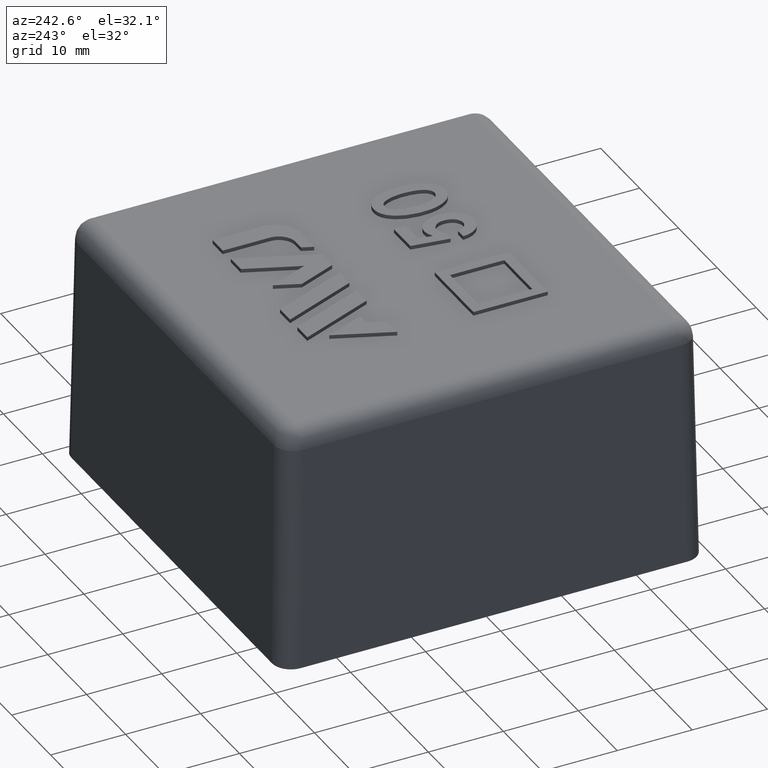
[diagram: clean part render]
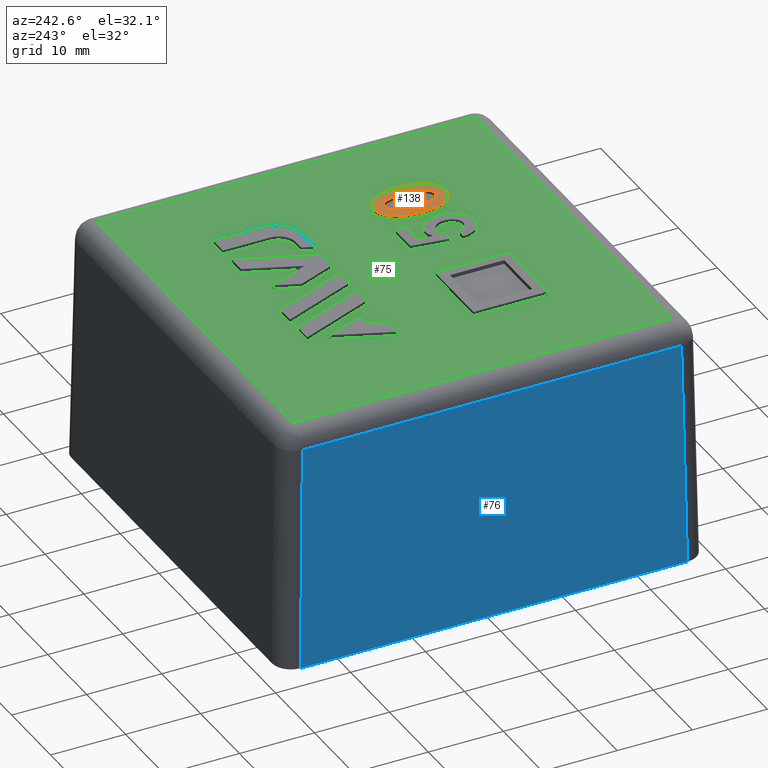
[diagram: same view with three faces highlighted in distinct colors, each labeled with its STEP entity id]
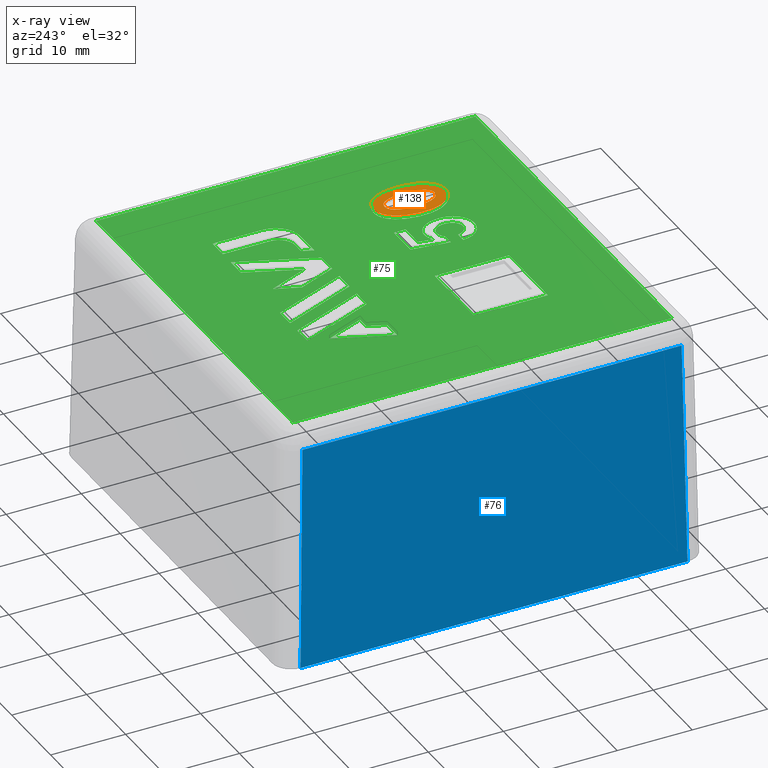
[diagram: x-ray of the same camera — body ghosted, the three highlighted faces saturated]
A machine part, auxiliary view with three faces highlighted in distinct colors.
The next image is the same camera in x-ray (body ghosted, the three faces saturated) — at least one of them is partly hidden behind the body in this view.
Their STEP definitions:

[orange] entity #138 — the highlighted planar face has unit normal (0, 0, 1).
#138 = ADVANCED_FACE( '', ( #295, #296 ), #297, .T. );
#295 = FACE_OUTER_BOUND( '', #475, .T. );
#296 = FACE_BOUND( '', #476, .T. );
#297 = PLANE( '', #477 );
#475 = EDGE_LOOP( '', ( #1062 ) );
#476 = EDGE_LOOP( '', ( #1063 ) );
#477 = AXIS2_PLACEMENT_3D( '', #1064, #1065, #1066 );
#1062 = ORIENTED_EDGE( '', *, *, #1250, .F. );
#1063 = ORIENTED_EDGE( '', *, *, #1251, .F. );
#1064 = CARTESIAN_POINT( '', ( 13.8482948863636, -5.87955454545456, 33.0000000000000 ) );
#1065 = DIRECTION( '', ( 0.000000000000000, 0.000000000000000, 1.00000000000000 ) );
#1066 = DIRECTION( '', ( 0.000000000000000, -1.00000000000000, 0.000000000000000 ) );
#1250 = EDGE_CURVE( '', #1499, #1499, #1500, .T. );
#1251 = EDGE_CURVE( '', #1501, #1501, #1502, .T. );
#1499 = VERTEX_POINT( '', #1920 );
#1500 = B_SPLINE_CURVE_WITH_KNOTS( '', 2, ( #1921, #1922, #1923, #1924, #1925, #1926, #1927, #1928, #1929, #1930, #1931, #1932, #1933, #1934, #1935, #1936, #1937 ), .UNSPECIFIED., .T., .F., ( 3, 2, 2, 2, 2, 2, 2, 2, 3 ), ( 0.000000000000000, 1.00000000000000, 2.00000000000000, 3.00000000000000, 4.00000000000000, 5.00000000000000, 6.00000000000000, 7.00000000000000, 8.00000000000000 ), .UNSPECIFIED. );
#1501 = VERTEX_POINT( '', #1938 );
#1502 = B_SPLINE_CURVE_WITH_KNOTS( '', 2, ( #1939, #1940, #1941, #1942, #1943, #1944, #1945, #1946, #1947, #1948, #1949, #1950, #1951, #1952, #1953, #1954, #1955 ), .UNSPECIFIED., .T., .F., ( 3, 2, 2, 2, 2, 2, 2, 2, 3 ), ( 0.000000000000000, 1.00000000000000, 2.00000000000000, 3.00000000000000, 4.00000000000000, 5.00000000000000, 6.00000000000000, 7.00000000000000, 8.00000000000000 ), .UNSPECIFIED. );
#1920 = CARTESIAN_POINT( '', ( 9.54146598600632, -13.1306803890433, 33.0000000000000 ) );
#1921 = CARTESIAN_POINT( '', ( 9.54146598600632, -13.1306803890433, 33.0000000000000 ) );
#1922 = CARTESIAN_POINT( '', ( 8.63574943181814, -11.9462818181818, 33.0000000000000 ) );
#1923 = CARTESIAN_POINT( '', ( 8.57256389032842, -9.94540633767386, 33.0000000000000 ) );
#1924 = CARTESIAN_POINT( '', ( 8.49938579545451, -7.62810000000002, 33.0000000000000 ) );
#1925 = CARTESIAN_POINT( '', ( 9.44167384448413, -6.12043912155262, 33.0000000000000 ) );
#1926 = CARTESIAN_POINT( '', ( 10.3175676136363, -4.71900909090911, 33.0000000000000 ) );
#1927 = CARTESIAN_POINT( '', ( 11.7266585227272, -4.71900909090911, 33.0000000000000 ) );
#1928 = CARTESIAN_POINT( '', ( 13.0448403409091, -4.71900909090911, 33.0000000000000 ) );
#1929 = CARTESIAN_POINT( '', ( 13.8482948863636, -5.87955454545456, 33.0000000000000 ) );
#1930 = CARTESIAN_POINT( '', ( 14.6812039772727, -7.08264545454547, 33.0000000000000 ) );
#1931 = CARTESIAN_POINT( '', ( 14.7653459165192, -9.08101651164897, 33.0000000000000 ) );
#1932 = CARTESIAN_POINT( '', ( 14.8630221590909, -11.4008272727273, 33.0000000000000 ) );
#1933 = CARTESIAN_POINT( '', ( 13.9601905644560, -12.8592475409836, 33.0000000000000 ) );
#1934 = CARTESIAN_POINT( '', ( 13.0902948863636, -14.2644636363637, 33.0000000000000 ) );
#1935 = CARTESIAN_POINT( '', ( 11.7266585227272, -14.2644636363637, 33.0000000000000 ) );
#1936 = CARTESIAN_POINT( '', ( 10.4084767045454, -14.2644636363637, 33.0000000000000 ) );
#1937 = CARTESIAN_POINT( '', ( 9.54146598600632, -13.1306803890433, 33.0000000000000 ) );
#1938 = CARTESIAN_POINT( '', ( 10.3630221590909, -11.5826454545455, 33.0000000000000 ) );
#1939 = CARTESIAN_POINT( '', ( 10.3630221590909, -11.5826454545455, 33.0000000000000 ) );
#1940 = CARTESIAN_POINT( '', ( 10.7721130681818, -12.6735545454546, 33.0000000000000 ) );
#1941 = CARTESIAN_POINT( '', ( 11.5454891766094, -12.8061333068993, 33.0000000000000 ) );
#1942 = CARTESIAN_POINT( '', ( 12.3630221590909, -12.9462818181818, 33.0000000000000 ) );
#1943 = CARTESIAN_POINT( '', ( 12.8472214239178, -12.0288516321940, 33.0000000000000 ) );
#1944 = CARTESIAN_POINT( '', ( 13.2266585227272, -11.3099181818182, 33.0000000000000 ) );
#1945 = CARTESIAN_POINT( '', ( 13.3101479527513, -10.0367043739509, 33.0000000000000 ) );
#1946 = CARTESIAN_POINT( '', ( 13.4084767045454, -8.53719090909092, 33.0000000000000 ) );
#1947 = CARTESIAN_POINT( '', ( 13.0383212235975, -7.44849831806775, 33.0000000000000 ) );
#1948 = CARTESIAN_POINT( '', ( 12.6357494318181, -6.26446363636365, 33.0000000000000 ) );
#1949 = CARTESIAN_POINT( '', ( 11.9102948863636, -6.16082727272729, 33.0000000000000 ) );
#1950 = CARTESIAN_POINT( '', ( 11.0448403409091, -6.03719090909093, 33.0000000000000 ) );
#1951 = CARTESIAN_POINT( '', ( 10.6000850961538, -6.81551258741260, 33.0000000000000 ) );
#1952 = CARTESIAN_POINT( '', ( 10.1357494318181, -7.62810000000002, 33.0000000000000 ) );
#1953 = CARTESIAN_POINT( '', ( 10.0520263794627, -8.94673807459794, 33.0000000000000 ) );
#1954 = CARTESIAN_POINT( '', ( 9.95393124999997, -10.4917363636364, 33.0000000000000 ) );
#1955 = CARTESIAN_POINT( '', ( 10.3630221590909, -11.5826454545455, 33.0000000000000 ) );

[blue] entity #76 — the highlighted planar face has unit normal (-0.9998, 0, 0.0175).
#76 = ADVANCED_FACE( '', ( #167 ), #168, .T. );
#167 = FACE_OUTER_BOUND( '', #342, .T. );
#168 = PLANE( '', #343 );
#342 = EDGE_LOOP( '', ( #562, #563, #564, #565 ) );
#343 = AXIS2_PLACEMENT_3D( '', #566, #567, #568 );
#562 = ORIENTED_EDGE( '', *, *, #1235, .T. );
#563 = ORIENTED_EDGE( '', *, *, #1236, .T. );
#564 = ORIENTED_EDGE( '', *, *, #1237, .T. );
#565 = ORIENTED_EDGE( '', *, *, #1238, .T. );
#566 = CARTESIAN_POINT( '', ( -28.3000000000000, -28.3000000000000, 0.000000000000000 ) );
#567 = DIRECTION( '', ( -0.999847695156391, 0.000000000000000, 0.0174524064372835 ) );
#568 = DIRECTION( '', ( 0.0174524064372835, 0.000000000000000, 0.999847695156391 ) );
#1235 = EDGE_CURVE( '', #1472, #1473, #1474, .T. );
#1236 = EDGE_CURVE( '', #1473, #1475, #1476, .F. );
#1237 = EDGE_CURVE( '', #1475, #1477, #1478, .F. );
#1238 = EDGE_CURVE( '', #1477, #1472, #1479, .F. );
#1472 = VERTEX_POINT( '', #1880 );
#1473 = VERTEX_POINT( '', #1881 );
#1474 = LINE( '', #1882, #1883 );
#1475 = VERTEX_POINT( '', #1884 );
#1476 = LINE( '', #1885, #1886 );
#1477 = VERTEX_POINT( '', #1887 );
#1478 = LINE( '', #1888, #1889 );
#1479 = LINE( '', #1890, #1891 );
#1880 = CARTESIAN_POINT( '', ( -28.3000000000000, -25.8003807621090, 0.000000000000000 ) );
#1881 = CARTESIAN_POINT( '', ( -27.7755864699347, -25.2759672320437, 30.0436310160932 ) );
#1882 = CARTESIAN_POINT( '', ( -28.3007611184247, -25.8011418805338, -0.0436044453501648 ) );
#1883 = VECTOR( '', #2348, 1000.00000000000 );
#1884 = CARTESIAN_POINT( '', ( -27.7755864699347, 25.2759672320437, 30.0436310160932 ) );
#1885 = CARTESIAN_POINT( '', ( -27.7755864699347, 25.2330911519419, 30.0436310160932 ) );
#1886 = VECTOR( '', #2349, 1000.00000000000 );
#1887 = CARTESIAN_POINT( '', ( -28.3000000000000, 25.8003807621090, 0.000000000000000 ) );
#1888 = CARTESIAN_POINT( '', ( -28.2835267724141, 25.7839075345231, 0.943750576329729 ) );
#1889 = VECTOR( '', #2350, 1000.00000000000 );
#1890 = CARTESIAN_POINT( '', ( -28.3000000000000, -28.3000000000000, 0.000000000000000 ) );
#1891 = VECTOR( '', #2351, 1000.00000000000 );
#2348 = DIRECTION( '', ( 0.0174497491606827, 0.0174497491606827, 0.999695459881887 ) );
#2349 = DIRECTION( '', ( 0.000000000000000, -1.00000000000000, 0.000000000000000 ) );
#2350 = DIRECTION( '', ( 0.0174497491606827, -0.0174497491606827, 0.999695459881887 ) );
#2351 = DIRECTION( '', ( 0.000000000000000, 1.00000000000000, 0.000000000000000 ) );

[green] entity #75 — the highlighted planar face has unit normal (0, 0, 1).
#75 = ADVANCED_FACE( '', ( #157, #158, #159, #160, #161, #162, #163, #164, #165 ), #166, .T. );
#157 = FACE_BOUND( '', #332, .T. );
#158 = FACE_OUTER_BOUND( '', #333, .T. );
#159 = FACE_BOUND( '', #334, .T. );
#160 = FACE_BOUND( '', #335, .T. );
#161 = FACE_BOUND( '', #336, .T. );
#162 = FACE_BOUND( '', #337, .T. );
#163 = FACE_BOUND( '', #338, .T. );
#164 = FACE_BOUND( '', #339, .T. );
#165 = FACE_BOUND( '', #340, .T. );
#166 = PLANE( '', #341 );
#332 = EDGE_LOOP( '', ( #512, #513, #514, #515, #516, #517, #518, #519, #520, #521 ) );
#333 = EDGE_LOOP( '', ( #522, #523, #524, #525 ) );
#334 = EDGE_LOOP( '', ( #526, #527, #528, #529, #530, #531, #532, #533 ) );
#335 = EDGE_LOOP( '', ( #534, #535, #536, #537, #538, #539, #540 ) );
#336 = EDGE_LOOP( '', ( #541, #542, #543, #544 ) );
#337 = EDGE_LOOP( '', ( #545, #546, #547, #548 ) );
#338 = EDGE_LOOP( '', ( #549, #550, #551, #552, #553 ) );
#339 = EDGE_LOOP( '', ( #554, #555, #556, #557 ) );
#340 = EDGE_LOOP( '', ( #558 ) );
#341 = AXIS2_PLACEMENT_3D( '', #559, #560, #561 );
#512 = ORIENTED_EDGE( '', *, *, #1188, .T. );
#513 = ORIENTED_EDGE( '', *, *, #1189, .T. );
#514 = ORIENTED_EDGE( '', *, *, #1190, .T. );
#515 = ORIENTED_EDGE( '', *, *, #1191, .T. );
#516 = ORIENTED_EDGE( '', *, *, #1192, .T. );
#517 = ORIENTED_EDGE( '', *, *, #1193, .T. );
#518 = ORIENTED_EDGE( '', *, *, #1194, .T. );
#519 = ORIENTED_EDGE( '', *, *, #1195, .T. );
#520 = ORIENTED_EDGE( '', *, *, #1196, .T. );
#521 = ORIENTED_EDGE( '', *, *, #1197, .T. );
#522 = ORIENTED_EDGE( '', *, *, #1198, .T. );
#523 = ORIENTED_EDGE( '', *, *, #1199, .T. );
#524 = ORIENTED_EDGE( '', *, *, #1200, .T. );
#525 = ORIENTED_EDGE( '', *, *, #1201, .T. );
#526 = ORIENTED_EDGE( '', *, *, #1202, .F. );
#527 = ORIENTED_EDGE( '', *, *, #1203, .F. );
#528 = ORIENTED_EDGE( '', *, *, #1204, .F. );
#529 = ORIENTED_EDGE( '', *, *, #1205, .F. );
#530 = ORIENTED_EDGE( '', *, *, #1206, .F. );
#531 = ORIENTED_EDGE( '', *, *, #1207, .F. );
#532 = ORIENTED_EDGE( '', *, *, #1208, .F. );
#533 = ORIENTED_EDGE( '', *, *, #1209, .F. );
#534 = ORIENTED_EDGE( '', *, *, #1210, .F. );
#535 = ORIENTED_EDGE( '', *, *, #1211, .F. );
#536 = ORIENTED_EDGE( '', *, *, #1212, .F. );
#537 = ORIENTED_EDGE( '', *, *, #1213, .F. );
#538 = ORIENTED_EDGE( '', *, *, #1214, .F. );
#539 = ORIENTED_EDGE( '', *, *, #1215, .F. );
#540 = ORIENTED_EDGE( '', *, *, #1216, .F. );
#541 = ORIENTED_EDGE( '', *, *, #1217, .F. );
#542 = ORIENTED_EDGE( '', *, *, #1218, .F. );
#543 = ORIENTED_EDGE( '', *, *, #1219, .F. );
#544 = ORIENTED_EDGE( '', *, *, #1220, .F. );
#545 = ORIENTED_EDGE( '', *, *, #1221, .F. );
#546 = ORIENTED_EDGE( '', *, *, #1222, .F. );
#547 = ORIENTED_EDGE( '', *, *, #1223, .F. );
#548 = ORIENTED_EDGE( '', *, *, #1224, .F. );
#549 = ORIENTED_EDGE( '', *, *, #1225, .F. );
#550 = ORIENTED_EDGE( '', *, *, #1226, .F. );
#551 = ORIENTED_EDGE( '', *, *, #1227, .F. );
#552 = ORIENTED_EDGE( '', *, *, #1228, .F. );
#553 = ORIENTED_EDGE( '', *, *, #1229, .F. );
#554 = ORIENTED_EDGE( '', *, *, #1230, .T. );
#555 = ORIENTED_EDGE( '', *, *, #1231, .T. );
#556 = ORIENTED_EDGE( '', *, *, #1232, .T. );
#557 = ORIENTED_EDGE( '', *, *, #1233, .T. );
#558 = ORIENTED_EDGE( '', *, *, #1234, .T. );
#559 = CARTESIAN_POINT( '', ( -28.3000000000000, -28.3000000000000, 32.5000000000000 ) );
#560 = DIRECTION( '', ( 0.000000000000000, 0.000000000000000, 1.00000000000000 ) );
#561 = DIRECTION( '', ( 0.000000000000000, -1.00000000000000, 0.000000000000000 ) );
#1188 = EDGE_CURVE( '', #1378, #1379, #1380, .T. );
#1189 = EDGE_CURVE( '', #1379, #1381, #1382, .T. );
#1190 = EDGE_CURVE( '', #1381, #1383, #1384, .T. );
#1191 = EDGE_CURVE( '', #1383, #1385, #1386, .T. );
#1192 = EDGE_CURVE( '', #1385, #1387, #1388, .T. );
#1193 = EDGE_CURVE( '', #1387, #1389, #1390, .T. );
#1194 = EDGE_CURVE( '', #1389, #1391, #1392, .T. );
#1195 = EDGE_CURVE( '', #1391, #1393, #1394, .T. );
#1196 = EDGE_CURVE( '', #1393, #1395, #1396, .T. );
#1197 = EDGE_CURVE( '', #1395, #1378, #1397, .T. );
#1198 = EDGE_CURVE( '', #1398, #1399, #1400, .F. );
#1199 = EDGE_CURVE( '', #1399, #1401, #1402, .F. );
#1200 = EDGE_CURVE( '', #1401, #1403, #1404, .F. );
#1201 = EDGE_CURVE( '', #1403, #1398, #1405, .F. );
#1202 = EDGE_CURVE( '', #1406, #1407, #1408, .T. );
#1203 = EDGE_CURVE( '', #1409, #1406, #1410, .T. );
#1204 = EDGE_CURVE( '', #1411, #1409, #1412, .T. );
#1205 = EDGE_CURVE( '', #1413, #1411, #1414, .T. );
#1206 = EDGE_CURVE( '', #1415, #1413, #1416, .T. );
#1207 = EDGE_CURVE( '', #1417, #1415, #1418, .T. );
#1208 = EDGE_CURVE( '', #1419, #1417, #1420, .T. );
#1209 = EDGE_CURVE( '', #1407, #1419, #1421, .T. );
#1210 = EDGE_CURVE( '', #1422, #1423, #1424, .T. );
#1211 = EDGE_CURVE( '', #1425, #1422, #1426, .T. );
#1212 = EDGE_CURVE( '', #1427, #1425, #1428, .T. );
#1213 = EDGE_CURVE( '', #1429, #1427, #1430, .T. );
#1214 = EDGE_CURVE( '', #1431, #1429, #1432, .T. );
#1215 = EDGE_CURVE( '', #1433, #1431, #1434, .T. );
#1216 = EDGE_CURVE( '', #1423, #1433, #1435, .T. );
#1217 = EDGE_CURVE( '', #1436, #1437, #1438, .T. );
#1218 = EDGE_CURVE( '', #1439, #1436, #1440, .T. );
#1219 = EDGE_CURVE( '', #1441, #1439, #1442, .T. );
#1220 = EDGE_CURVE( '', #1437, #1441, #1443, .T. );
#1221 = EDGE_CURVE( '', #1444, #1445, #1446, .T. );
#1222 = EDGE_CURVE( '', #1447, #1444, #1448, .T. );
#1223 = EDGE_CURVE( '', #1449, #1447, #1450, .T. );
#1224 = EDGE_CURVE( '', #1445, #1449, #1451, .T. );
#1225 = EDGE_CURVE( '', #1452, #1453, #1454, .T. );
#1226 = EDGE_CURVE( '', #1455, #1452, #1456, .T. );
#1227 = EDGE_CURVE( '', #1457, #1455, #1458, .T. );
#1228 = EDGE_CURVE( '', #1459, #1457, #1460, .T. );
#1229 = EDGE_CURVE( '', #1453, #1459, #1461, .T. );
#1230 = EDGE_CURVE( '', #1462, #1463, #1464, .T. );
#1231 = EDGE_CURVE( '', #1463, #1465, #1466, .T. );
#1232 = EDGE_CURVE( '', #1465, #1467, #1468, .T. );
#1233 = EDGE_CURVE( '', #1467, #1462, #1469, .T. );
#1234 = EDGE_CURVE( '', #1470, #1470, #1471, .T. );
#1378 = VERTEX_POINT( '', #1692 );
#1379 = VERTEX_POINT( '', #1693 );
#1380 = B_SPLINE_CURVE_WITH_KNOTS( '', 2, ( #1694, #1695, #1696, #1697, #1698, #1699, #1700, #1701, #1702, #1703, #1704, #1705, #1706 ), .UNSPECIFIED., .F., .F., ( 3, 2, 2, 2, 2, 2, 3 ), ( 14.0000000000000, 15.0000000000000, 16.0000000000000, 17.0000000000000, 18.0000000000000, 19.0000000000000, 20.0000000000000 ), .UNSPECIFIED. );
#1381 = VERTEX_POINT( '', #1707 );
#1382 = B_SPLINE_CURVE_WITH_KNOTS( '', 2, ( #1708, #1709, #1710 ), .UNSPECIFIED., .F., .F., ( 3, 3 ), ( 0.000000000000000, 1.00000000000000 ), .UNSPECIFIED. );
#1383 = VERTEX_POINT( '', #1711 );
#1384 = B_SPLINE_CURVE_WITH_KNOTS( '', 2, ( #1712, #1713, #1714 ), .UNSPECIFIED., .F., .F., ( 3, 3 ), ( 1.00000000000000, 2.00000000000000 ), .UNSPECIFIED. );
#1385 = VERTEX_POINT( '', #1715 );
#1386 = B_SPLINE_CURVE_WITH_KNOTS( '', 2, ( #1716, #1717, #1718, #1719, #1720, #1721, #1722, #1723, #1724, #1725, #1726, #1727, #1728 ), .UNSPECIFIED., .F., .F., ( 3, 2, 2, 2, 2, 2, 3 ), ( 2.00000000000000, 3.00000000000000, 4.00000000000000, 5.00000000000000, 6.00000000000000, 7.00000000000000, 8.00000000000000 ), .UNSPECIFIED. );
#1387 = VERTEX_POINT( '', #1729 );
#1388 = B_SPLINE_CURVE_WITH_KNOTS( '', 2, ( #1730, #1731, #1732 ), .UNSPECIFIED., .F., .F., ( 3, 3 ), ( 8.00000000000000, 9.00000000000000 ), .UNSPECIFIED. );
#1389 = VERTEX_POINT( '', #1733 );
#1390 = B_SPLINE_CURVE_WITH_KNOTS( '', 2, ( #1734, #1735, #1736 ), .UNSPECIFIED., .F., .F., ( 3, 3 ), ( 9.00000000000000, 10.0000000000000 ), .UNSPECIFIED. );
#1391 = VERTEX_POINT( '', #1737 );
#1392 = B_SPLINE_CURVE_WITH_KNOTS( '', 2, ( #1738, #1739, #1740 ), .UNSPECIFIED., .F., .F., ( 3, 3 ), ( 10.0000000000000, 11.0000000000000 ), .UNSPECIFIED. );
#1393 = VERTEX_POINT( '', #1741 );
#1394 = B_SPLINE_CURVE_WITH_KNOTS( '', 2, ( #1742, #1743, #1744 ), .UNSPECIFIED., .F., .F., ( 3, 3 ), ( 11.0000000000000, 12.0000000000000 ), .UNSPECIFIED. );
#1395 = VERTEX_POINT( '', #1745 );
#1396 = B_SPLINE_CURVE_WITH_KNOTS( '', 2, ( #1746, #1747, #1748 ), .UNSPECIFIED., .F., .F., ( 3, 3 ), ( 12.0000000000000, 13.0000000000000 ), .UNSPECIFIED. );
#1397 = B_SPLINE_CURVE_WITH_KNOTS( '', 2, ( #1749, #1750, #1751 ), .UNSPECIFIED., .F., .F., ( 3, 3 ), ( 13.0000000000000, 14.0000000000000 ), .UNSPECIFIED. );
#1398 = VERTEX_POINT( '', #1752 );
#1399 = VERTEX_POINT( '', #1753 );
#1400 = LINE( '', #1754, #1755 );
#1401 = VERTEX_POINT( '', #1756 );
#1402 = LINE( '', #1757, #1758 );
#1403 = VERTEX_POINT( '', #1759 );
#1404 = LINE( '', #1760, #1761 );
#1405 = LINE( '', #1762, #1763 );
#1406 = VERTEX_POINT( '', #1764 );
#1407 = VERTEX_POINT( '', #1765 );
#1408 = LINE( '', #1766, #1767 );
#1409 = VERTEX_POINT( '', #1768 );
#1410 = LINE( '', #1769, #1770 );
#1411 = VERTEX_POINT( '', #1771 );
#1412 = LINE( '', #1772, #1773 );
#1413 = VERTEX_POINT( '', #1774 );
#1414 = CIRCLE( '', #1775, 3.33666750000000 );
#1415 = VERTEX_POINT( '', #1776 );
#1416 = LINE( '', #1777, #1778 );
#1417 = VERTEX_POINT( '', #1779 );
#1418 = LINE( '', #1780, #1781 );
#1419 = VERTEX_POINT( '', #1782 );
#1420 = LINE( '', #1783, #1784 );
#1421 = CIRCLE( '', #1785, 2.22444500000000 );
#1422 = VERTEX_POINT( '', #1786 );
#1423 = VERTEX_POINT( '', #1787 );
#1424 = LINE( '', #1788, #1789 );
#1425 = VERTEX_POINT( '', #1790 );
#1426 = LINE( '', #1791, #1792 );
#1427 = VERTEX_POINT( '', #1793 );
#1428 = LINE( '', #1794, #1795 );
#1429 = VERTEX_POINT( '', #1796 );
#1430 = LINE( '', #1797, #1798 );
#1431 = VERTEX_POINT( '', #1799 );
#1432 = LINE( '', #1800, #1801 );
#1433 = VERTEX_POINT( '', #1802 );
#1434 = LINE( '', #1803, #1804 );
#1435 = LINE( '', #1805, #1806 );
#1436 = VERTEX_POINT( '', #1807 );
#1437 = VERTEX_POINT( '', #1808 );
#1438 = LINE( '', #1809, #1810 );
#1439 = VERTEX_POINT( '', #1811 );
#1440 = LINE( '', #1812, #1813 );
#1441 = VERTEX_POINT( '', #1814 );
#1442 = LINE( '', #1815, #1816 );
#1443 = LINE( '', #1817, #1818 );
#1444 = VERTEX_POINT( '', #1819 );
#1445 = VERTEX_POINT( '', #1820 );
#1446 = LINE( '', #1821, #1822 );
#1447 = VERTEX_POINT( '', #1823 );
#1448 = LINE( '', #1824, #1825 );
#1449 = VERTEX_POINT( '', #1826 );
#1450 = LINE( '', #1827, #1828 );
#1451 = LINE( '', #1829, #1830 );
#1452 = VERTEX_POINT( '', #1831 );
#1453 = VERTEX_POINT( '', #1832 );
#1454 = LINE( '', #1833, #1834 );
#1455 = VERTEX_POINT( '', #1835 );
#1456 = LINE( '', #1836, #1837 );
#1457 = VERTEX_POINT( '', #1838 );
#1458 = LINE( '', #1839, #1840 );
#1459 = VERTEX_POINT( '', #1841 );
#1460 = LINE( '', #1842, #1843 );
#1461 = LINE( '', #1844, #1845 );
#1462 = VERTEX_POINT( '', #1846 );
#1463 = VERTEX_POINT( '', #1847 );
#1464 = B_SPLINE_CURVE_WITH_KNOTS( '', 2, ( #1848, #1849, #1850 ), .UNSPECIFIED., .F., .F., ( 3, 3 ), ( 3.00000000000000, 4.00000000000000 ), .UNSPECIFIED. );
#1465 = VERTEX_POINT( '', #1851 );
#1466 = B_SPLINE_CURVE_WITH_KNOTS( '', 2, ( #1852, #1853, #1854 ), .UNSPECIFIED., .F., .F., ( 3, 3 ), ( 0.000000000000000, 1.00000000000000 ), .UNSPECIFIED. );
#1467 = VERTEX_POINT( '', #1855 );
#1468 = B_SPLINE_CURVE_WITH_KNOTS( '', 2, ( #1856, #1857, #1858 ), .UNSPECIFIED., .F., .F., ( 3, 3 ), ( 1.00000000000000, 2.00000000000000 ), .UNSPECIFIED. );
#1469 = B_SPLINE_CURVE_WITH_KNOTS( '', 2, ( #1859, #1860, #1861 ), .UNSPECIFIED., .F., .F., ( 3, 3 ), ( 2.00000000000000, 3.00000000000000 ), .UNSPECIFIED. );
#1470 = VERTEX_POINT( '', #1862 );
#1471 = B_SPLINE_CURVE_WITH_KNOTS( '', 2, ( #1863, #1864, #1865, #1866, #1867, #1868, #1869, #1870, #1871, #1872, #1873, #1874, #1875, #1876, #1877, #1878, #1879 ), .UNSPECIFIED., .T., .F., ( 3, 2, 2, 2, 2, 2, 2, 2, 3 ), ( 0.000000000000000, 1.00000000000000, 2.00000000000000, 3.00000000000000, 4.00000000000000, 5.00000000000000, 6.00000000000000, 7.00000000000000, 8.00000000000000 ), .UNSPECIFIED. );
#1692 = CARTESIAN_POINT( '', ( 3.27211306818178, -8.21900909090911, 32.5000000000000 ) );
#1693 = CARTESIAN_POINT( '', ( 2.25689683753576, -13.3228289229724, 32.5000000000000 ) );
#1694 = CARTESIAN_POINT( '', ( 3.27211306818178, -8.21900909090911, 32.5000000000000 ) );
#1695 = CARTESIAN_POINT( '', ( 4.68120397727269, -7.35537272727274, 32.5000000000000 ) );
#1696 = CARTESIAN_POINT( '', ( 5.86116923494495, -8.17621812391432, 32.5000000000000 ) );
#1697 = CARTESIAN_POINT( '', ( 6.77211306818178, -8.80991818181820, 32.5000000000000 ) );
#1698 = CARTESIAN_POINT( '', ( 7.04484034090905, -10.1281000000000, 32.5000000000000 ) );
#1699 = CARTESIAN_POINT( '', ( 7.31756761363633, -11.4462818181818, 32.5000000000000 ) );
#1700 = CARTESIAN_POINT( '', ( 6.79419149816010, -12.5927247377964, 32.5000000000000 ) );
#1701 = CARTESIAN_POINT( '', ( 6.36302215909087, -13.5371909090909, 32.5000000000000 ) );
#1702 = CARTESIAN_POINT( '', ( 5.49489288951652, -13.9829870204940, 32.5000000000000 ) );
#1703 = CARTESIAN_POINT( '', ( 4.68120397727269, -14.4008272727273, 32.5000000000000 ) );
#1704 = CARTESIAN_POINT( '', ( 3.81581936188807, -14.2277503496504, 32.5000000000000 ) );
#1705 = CARTESIAN_POINT( '', ( 2.86302215909087, -14.0371909090909, 32.5000000000000 ) );
#1706 = CARTESIAN_POINT( '', ( 2.25689683753576, -13.3228289229724, 32.5000000000000 ) );
#1707 = CARTESIAN_POINT( '', ( 1.54484034090906, -11.3553727272727, 32.5000000000000 ) );
#1708 = CARTESIAN_POINT( '', ( 2.25689683753576, -13.3228289229724, 32.5000000000000 ) );
#1709 = CARTESIAN_POINT( '', ( 1.59029488636360, -12.5371909090909, 32.5000000000000 ) );
#1710 = CARTESIAN_POINT( '', ( 1.54484034090906, -11.3553727272727, 32.5000000000000 ) );
#1711 = CARTESIAN_POINT( '', ( 2.86302215909087, -11.3553727272727, 32.5000000000000 ) );
#1712 = CARTESIAN_POINT( '', ( 1.54484034090906, -11.3553727272727, 32.5000000000000 ) );
#1713 = CARTESIAN_POINT( '', ( 2.20393124999996, -11.3553727272727, 32.5000000000000 ) );
#1714 = CARTESIAN_POINT( '', ( 2.86302215909087, -11.3553727272727, 32.5000000000000 ) );
#1715 = CARTESIAN_POINT( '', ( 3.18120397727269, -9.80991818181820, 32.5000000000000 ) );
#1716 = CARTESIAN_POINT( '', ( 2.86302215909087, -11.3553727272727, 32.5000000000000 ) );
#1717 = CARTESIAN_POINT( '', ( 2.99938579545451, -12.0826454545455, 32.5000000000000 ) );
#1718 = CARTESIAN_POINT( '', ( 3.50801842894060, -12.4807057764042, 32.5000000000000 ) );
#1719 = CARTESIAN_POINT( '', ( 4.04484034090905, -12.9008272727273, 32.5000000000000 ) );
#1720 = CARTESIAN_POINT( '', ( 4.59488239305371, -12.7341478629865, 32.5000000000000 ) );
#1721 = CARTESIAN_POINT( '', ( 5.54484034090906, -12.4462818181818, 32.5000000000000 ) );
#1722 = CARTESIAN_POINT( '', ( 5.70044926029156, -11.3125596912522, 32.5000000000000 ) );
#1723 = CARTESIAN_POINT( '', ( 5.86302215909087, -10.1281000000000, 32.5000000000000 ) );
#1724 = CARTESIAN_POINT( '', ( 5.04484034090905, -9.49173636363638, 32.5000000000000 ) );
#1725 = CARTESIAN_POINT( '', ( 4.63574943181815, -9.17355454545456, 32.5000000000000 ) );
#1726 = CARTESIAN_POINT( '', ( 4.09029488636360, -9.26446363636365, 32.5000000000000 ) );
#1727 = CARTESIAN_POINT( '', ( 3.54484034090906, -9.35537272727274, 32.5000000000000 ) );
#1728 = CARTESIAN_POINT( '', ( 3.18120397727269, -9.80991818181820, 32.5000000000000 ) );
#1729 = CARTESIAN_POINT( '', ( 1.77211306818178, -9.80991818181820, 32.5000000000000 ) );
#1730 = CARTESIAN_POINT( '', ( 3.18120397727269, -9.80991818181820, 32.5000000000000 ) );
#1731 = CARTESIAN_POINT( '', ( 2.47665852272724, -9.80991818181820, 32.5000000000000 ) );
#1732 = CARTESIAN_POINT( '', ( 1.77211306818178, -9.80991818181820, 32.5000000000000 ) );
#1733 = CARTESIAN_POINT( '', ( 2.49938579545451, -4.80991818181820, 32.5000000000000 ) );
#1734 = CARTESIAN_POINT( '', ( 1.77211306818178, -9.80991818181820, 32.5000000000000 ) );
#1735 = CARTESIAN_POINT( '', ( 2.13574943181815, -7.30991818181820, 32.5000000000000 ) );
#1736 = CARTESIAN_POINT( '', ( 2.49938579545451, -4.80991818181820, 32.5000000000000 ) );
#1737 = CARTESIAN_POINT( '', ( 6.72665852272724, -4.80991818181820, 32.5000000000000 ) );
#1738 = CARTESIAN_POINT( '', ( 2.49938579545451, -4.80991818181820, 32.5000000000000 ) );
#1739 = CARTESIAN_POINT( '', ( 4.61302215909087, -4.80991818181820, 32.5000000000000 ) );
#1740 = CARTESIAN_POINT( '', ( 6.72665852272724, -4.80991818181820, 32.5000000000000 ) );
#1741 = CARTESIAN_POINT( '', ( 6.72665852272724, -6.35537272727274, 32.5000000000000 ) );
#1742 = CARTESIAN_POINT( '', ( 6.72665852272724, -4.80991818181820, 32.5000000000000 ) );
#1743 = CARTESIAN_POINT( '', ( 6.72665852272724, -5.58264545454547, 32.5000000000000 ) );
#1744 = CARTESIAN_POINT( '', ( 6.72665852272724, -6.35537272727274, 32.5000000000000 ) );
#1745 = CARTESIAN_POINT( '', ( 3.59029488636360, -6.35537272727274, 32.5000000000000 ) );
#1746 = CARTESIAN_POINT( '', ( 6.72665852272724, -6.35537272727274, 32.5000000000000 ) );
#1747 = CARTESIAN_POINT( '', ( 5.15847670454542, -6.35537272727274, 32.5000000000000 ) );
#1748 = CARTESIAN_POINT( '', ( 3.59029488636360, -6.35537272727274, 32.5000000000000 ) );
#1749 = CARTESIAN_POINT( '', ( 3.59029488636360, -6.35537272727274, 32.5000000000000 ) );
#1750 = CARTESIAN_POINT( '', ( 3.43120397727269, -7.28719090909093, 32.5000000000000 ) );
#1751 = CARTESIAN_POINT( '', ( 3.27211306818178, -8.21900909090911, 32.5000000000000 ) );
#1752 = CARTESIAN_POINT( '', ( -25.2759672320437, -25.2759672320437, 32.5000000000000 ) );
#1753 = CARTESIAN_POINT( '', ( 25.2759672320437, -25.2759672320437, 32.5000000000000 ) );
#1754 = CARTESIAN_POINT( '', ( 25.2330911519420, -25.2759672320437, 32.5000000000000 ) );
#1755 = VECTOR( '', #2312, 1000.00000000000 );
#1756 = CARTESIAN_POINT( '', ( 25.2759672320437, 25.2759672320437, 32.5000000000000 ) );
#1757 = CARTESIAN_POINT( '', ( 25.2759672320437, 25.2330911519420, 32.5000000000000 ) );
#1758 = VECTOR( '', #2313, 1000.00000000000 );
#1759 = CARTESIAN_POINT( '', ( -25.2759672320437, 25.2759672320437, 32.5000000000000 ) );
#1760 = CARTESIAN_POINT( '', ( -25.2330911519419, 25.2759672320437, 32.5000000000000 ) );
#1761 = VECTOR( '', #2314, 1000.00000000000 );
#1762 = CARTESIAN_POINT( '', ( -25.2759672320437, -25.2330911519419, 32.5000000000000 ) );
#1763 = VECTOR( '', #2315, 1000.00000000000 );
#1764 = CARTESIAN_POINT( '', ( 11.8142270843900, 15.3695783770600, 32.5000000000000 ) );
#1765 = CARTESIAN_POINT( '', ( 11.8142270843900, 9.04592279439252, 32.5000000000000 ) );
#1766 = CARTESIAN_POINT( '', ( 11.8142270843900, 15.3695783770600, 32.5000000000000 ) );
#1767 = VECTOR( '', #2316, 1000.00000000000 );
#1768 = CARTESIAN_POINT( '', ( 14.4283347883750, 15.3695783770600, 32.5000000000000 ) );
#1769 = CARTESIAN_POINT( '', ( 14.4283347883750, 15.3695783770600, 32.5000000000000 ) );
#1770 = VECTOR( '', #2317, 1000.00000000000 );
#1771 = CARTESIAN_POINT( '', ( 14.4283347883750, 8.70356624999999, 32.5000000000000 ) );
#1772 = CARTESIAN_POINT( '', ( 14.4283347883750, 8.70356624999999, 32.5000000000000 ) );
#1773 = VECTOR( '', #2318, 1000.00000000000 );
#1774 = CARTESIAN_POINT( '', ( 11.0916672883750, 5.36689874999999, 32.5000000000000 ) );
#1775 = AXIS2_PLACEMENT_3D( '', #2319, #2320, #2321 );
#1776 = CARTESIAN_POINT( '', ( 7.58128954165748, 5.36689874999999, 32.5000000000000 ) );
#1777 = CARTESIAN_POINT( '', ( 7.58128954165748, 5.36689874999999, 32.5000000000000 ) );
#1778 = VECTOR( '', #2322, 1000.00000000000 );
#1779 = CARTESIAN_POINT( '', ( 8.16897678843247, 6.82147779439251, 32.5000000000000 ) );
#1780 = CARTESIAN_POINT( '', ( 8.16897678843247, 6.82147779439251, 32.5000000000000 ) );
#1781 = VECTOR( '', #2323, 1000.00000000000 );
#1782 = CARTESIAN_POINT( '', ( 9.58978208438997, 6.82147779439251, 32.5000000000000 ) );
#1783 = CARTESIAN_POINT( '', ( 9.58978208438997, 6.82147779439251, 32.5000000000000 ) );
#1784 = VECTOR( '', #2324, 1000.00000000000 );
#1785 = AXIS2_PLACEMENT_3D( '', #2325, #2326, #2327 );
#1786 = CARTESIAN_POINT( '', ( 9.76260366532998, 15.3695783770600, 32.5000000000000 ) );
#1787 = CARTESIAN_POINT( '', ( 7.17780969755498, 15.3695783770600, 32.5000000000000 ) );
#1788 = CARTESIAN_POINT( '', ( 9.76260366532998, 15.3695783770600, 32.5000000000000 ) );
#1789 = VECTOR( '', #2328, 1000.00000000000 );
#1790 = CARTESIAN_POINT( '', ( 5.72146110716496, 5.36689874999999, 32.5000000000000 ) );
#1791 = CARTESIAN_POINT( '', ( 5.72146110716496, 5.36689874999999, 32.5000000000000 ) );
#1792 = VECTOR( '', #2329, 1000.00000000000 );
#1793 = CARTESIAN_POINT( '', ( 2.98909412142248, 5.36689874999999, 32.5000000000000 ) );
#1794 = CARTESIAN_POINT( '', ( 2.98909412142248, 5.36689874999999, 32.5000000000000 ) );
#1795 = VECTOR( '', #2330, 1000.00000000000 );
#1796 = CARTESIAN_POINT( '', ( 0.929783020442486, 10.4629832371925, 32.5000000000000 ) );
#1797 = CARTESIAN_POINT( '', ( 0.929783020442486, 10.4629832371925, 32.5000000000000 ) );
#1798 = VECTOR( '', #2331, 1000.00000000000 );
#1799 = CARTESIAN_POINT( '', ( 2.22218000432998, 13.6623379717875, 32.5000000000000 ) );
#1800 = CARTESIAN_POINT( '', ( 2.22218000432998, 13.6623379717875, 32.5000000000000 ) );
#1801 = VECTOR( '', #2332, 1000.00000000000 );
#1802 = CARTESIAN_POINT( '', ( 4.35499344144498, 8.38368327344250, 32.5000000000000 ) );
#1803 = CARTESIAN_POINT( '', ( 4.35499344144498, 8.38368327344250, 32.5000000000000 ) );
#1804 = VECTOR( '', #2333, 1000.00000000000 );
#1805 = CARTESIAN_POINT( '', ( 7.17780969755498, 15.3695783770600, 32.5000000000000 ) );
#1806 = VECTOR( '', #2334, 1000.00000000000 );
#1807 = CARTESIAN_POINT( '', ( 1.12926679915248, 5.36689874999999, 32.5000000000000 ) );
#1808 = CARTESIAN_POINT( '', ( -2.91251083806003, 15.3695783770600, 32.5000000000000 ) );
#1809 = CARTESIAN_POINT( '', ( 1.12926679915248, 5.36689874999999, 32.5000000000000 ) );
#1810 = VECTOR( '', #2335, 1000.00000000000 );
#1811 = CARTESIAN_POINT( '', ( -1.45549380194752, 5.36689874999999, 32.5000000000000 ) );
#1812 = CARTESIAN_POINT( '', ( -1.45549380194752, 5.36689874999999, 32.5000000000000 ) );
#1813 = VECTOR( '', #2336, 1000.00000000000 );
#1814 = CARTESIAN_POINT( '', ( -5.49727032693751, 15.3695783770600, 32.5000000000000 ) );
#1815 = CARTESIAN_POINT( '', ( -5.49727032693751, 15.3695783770600, 32.5000000000000 ) );
#1816 = VECTOR( '', #2337, 1000.00000000000 );
#1817 = CARTESIAN_POINT( '', ( -2.91251083806003, 15.3695783770600, 32.5000000000000 ) );
#1818 = VECTOR( '', #2338, 1000.00000000000 );
#1819 = CARTESIAN_POINT( '', ( -3.31538785756752, 5.36689874999999, 32.5000000000000 ) );
#1820 = CARTESIAN_POINT( '', ( -7.35716549478003, 15.3695783770600, 32.5000000000000 ) );
#1821 = CARTESIAN_POINT( '', ( -3.31538785756752, 5.36689874999999, 32.5000000000000 ) );
#1822 = VECTOR( '', #2339, 1000.00000000000 );
#1823 = CARTESIAN_POINT( '', ( -5.89996382973253, 5.36689874999999, 32.5000000000000 ) );
#1824 = CARTESIAN_POINT( '', ( -5.89996382973253, 5.36689874999999, 32.5000000000000 ) );
#1825 = VECTOR( '', #2340, 1000.00000000000 );
#1826 = CARTESIAN_POINT( '', ( -9.94117312124752, 15.3695783770600, 32.5000000000000 ) );
#1827 = CARTESIAN_POINT( '', ( -9.94117312124752, 15.3695783770600, 32.5000000000000 ) );
#1828 = VECTOR( '', #2341, 1000.00000000000 );
#1829 = CARTESIAN_POINT( '', ( -7.35716549478003, 15.3695783770600, 32.5000000000000 ) );
#1830 = VECTOR( '', #2342, 1000.00000000000 );
#1831 = CARTESIAN_POINT( '', ( -13.7614227298000, 5.36689874999999, 32.5000000000000 ) );
#1832 = CARTESIAN_POINT( '', ( -11.1774151033325, 5.36689874999999, 32.5000000000000 ) );
#1833 = CARTESIAN_POINT( '', ( -13.7614227298000, 5.36689874999999, 32.5000000000000 ) );
#1834 = VECTOR( '', #2343, 1000.00000000000 );
#1835 = CARTESIAN_POINT( '', ( -10.7317197420200, 12.8666439852850, 32.5000000000000 ) );
#1836 = CARTESIAN_POINT( '', ( -10.7317197420200, 12.8666439852850, 32.5000000000000 ) );
#1837 = VECTOR( '', #2344, 1000.00000000000 );
#1838 = CARTESIAN_POINT( '', ( -8.63599113972252, 7.67713614476000, 32.5000000000000 ) );
#1839 = CARTESIAN_POINT( '', ( -8.63599113972252, 7.67713614476000, 32.5000000000000 ) );
#1840 = VECTOR( '', #2345, 1000.00000000000 );
#1841 = CARTESIAN_POINT( '', ( -10.2433395056025, 7.67713614476000, 32.5000000000000 ) );
#1842 = CARTESIAN_POINT( '', ( -10.2433395056025, 7.67713614476000, 32.5000000000000 ) );
#1843 = VECTOR( '', #2346, 1000.00000000000 );
#1844 = CARTESIAN_POINT( '', ( -11.1774151033325, 5.36689874999999, 32.5000000000000 ) );
#1845 = VECTOR( '', #2347, 1000.00000000000 );
#1846 = CARTESIAN_POINT( '', ( -4.04606875000004, -14.5826454545455, 32.5000000000000 ) );
#1847 = CARTESIAN_POINT( '', ( -14.0006142045455, -14.5826454545455, 32.5000000000000 ) );
#1848 = CARTESIAN_POINT( '', ( -4.04606875000004, -14.5826454545455, 32.5000000000000 ) );
#1849 = CARTESIAN_POINT( '', ( -9.02334147727276, -14.5826454545455, 32.5000000000000 ) );
#1850 = CARTESIAN_POINT( '', ( -14.0006142045455, -14.5826454545455, 32.5000000000000 ) );
#1851 = CARTESIAN_POINT( '', ( -14.0006142045455, -4.67355454545456, 32.5000000000000 ) );
#1852 = CARTESIAN_POINT( '', ( -14.0006142045455, -14.5826454545455, 32.5000000000000 ) );
#1853 = CARTESIAN_POINT( '', ( -14.0006142045455, -9.62810000000002, 32.5000000000000 ) );
#1854 = CARTESIAN_POINT( '', ( -14.0006142045455, -4.67355454545456, 32.5000000000000 ) );
#1855 = CARTESIAN_POINT( '', ( -4.04606875000004, -4.67355454545456, 32.5000000000000 ) );
#1856 = CARTESIAN_POINT( '', ( -14.0006142045455, -4.67355454545456, 32.5000000000000 ) );
#1857 = CARTESIAN_POINT( '', ( -9.02334147727276, -4.67355454545456, 32.5000000000000 ) );
#1858 = CARTESIAN_POINT( '', ( -4.04606875000004, -4.67355454545456, 32.5000000000000 ) );
#1859 = CARTESIAN_POINT( '', ( -4.04606875000004, -4.67355454545456, 32.5000000000000 ) );
#1860 = CARTESIAN_POINT( '', ( -4.04606875000004, -9.62810000000002, 32.5000000000000 ) );
#1861 = CARTESIAN_POINT( '', ( -4.04606875000004, -14.5826454545455, 32.5000000000000 ) );
#1862 = CARTESIAN_POINT( '', ( 9.54146598600632, -13.1306803890433, 32.5000000000000 ) );
#1863 = CARTESIAN_POINT( '', ( 9.54146598600632, -13.1306803890433, 32.5000000000000 ) );
#1864 = CARTESIAN_POINT( '', ( 8.63574943181814, -11.9462818181818, 32.5000000000000 ) );
#1865 = CARTESIAN_POINT( '', ( 8.57256389032842, -9.94540633767386, 32.5000000000000 ) );
#1866 = CARTESIAN_POINT( '', ( 8.49938579545451, -7.62810000000002, 32.5000000000000 ) );
#1867 = CARTESIAN_POINT( '', ( 9.44167384448413, -6.12043912155262, 32.5000000000000 ) );
#1868 = CARTESIAN_POINT( '', ( 10.3175676136363, -4.71900909090911, 32.5000000000000 ) );
#1869 = CARTESIAN_POINT( '', ( 11.7266585227272, -4.71900909090911, 32.5000000000000 ) );
#1870 = CARTESIAN_POINT( '', ( 13.0448403409091, -4.71900909090911, 32.5000000000000 ) );
#1871 = CARTESIAN_POINT( '', ( 13.8482948863636, -5.87955454545456, 32.5000000000000 ) );
#1872 = CARTESIAN_POINT( '', ( 14.6812039772727, -7.08264545454547, 32.5000000000000 ) );
#1873 = CARTESIAN_POINT( '', ( 14.7653459165192, -9.08101651164897, 32.5000000000000 ) );
#1874 = CARTESIAN_POINT( '', ( 14.8630221590909, -11.4008272727273, 32.5000000000000 ) );
#1875 = CARTESIAN_POINT( '', ( 13.9601905644560, -12.8592475409836, 32.5000000000000 ) );
#1876 = CARTESIAN_POINT( '', ( 13.0902948863636, -14.2644636363637, 32.5000000000000 ) );
#1877 = CARTESIAN_POINT( '', ( 11.7266585227272, -14.2644636363637, 32.5000000000000 ) );
#1878 = CARTESIAN_POINT( '', ( 10.4084767045454, -14.2644636363637, 32.5000000000000 ) );
#1879 = CARTESIAN_POINT( '', ( 9.54146598600632, -13.1306803890433, 32.5000000000000 ) );
#2312 = DIRECTION( '', ( -1.00000000000000, 0.000000000000000, 0.000000000000000 ) );
#2313 = DIRECTION( '', ( 0.000000000000000, -1.00000000000000, 0.000000000000000 ) );
#2314 = DIRECTION( '', ( 1.00000000000000, 0.000000000000000, 0.000000000000000 ) );
#2315 = DIRECTION( '', ( 0.000000000000000, 1.00000000000000, 0.000000000000000 ) );
#2316 = DIRECTION( '', ( -2.22044604925031E-016, -1.00000000000000, -2.71917234023173E-032 ) );
#2317 = DIRECTION( '', ( -1.00000000000000, -1.66533453693774E-016, -1.22460635382238E-016 ) );
#2318 = DIRECTION( '', ( 2.22044604925031E-016, 1.00000000000000, 2.71917234023173E-032 ) );
#2319 = CARTESIAN_POINT( '', ( 11.0916672883750, 8.70356624999999, 32.5000000000000 ) );
#2320 = DIRECTION( '', ( -1.22460635382238E-016, -3.93327947008728E-048, 1.00000000000000 ) );
#2321 = DIRECTION( '', ( 1.00000000000000, 2.89120579329468E-016, 1.22460635382238E-016 ) );
#2322 = DIRECTION( '', ( 1.00000000000000, 2.22044604925031E-016, 1.22460635382238E-016 ) );
#2323 = DIRECTION( '', ( -0.374606136016172, -0.927184039368147, -4.58745054346254E-017 ) );
#2324 = DIRECTION( '', ( -1.00000000000000, -2.77555756156289E-016, -1.22460635382238E-016 ) );
#2325 = CARTESIAN_POINT( '', ( 9.58978208438997, 9.04592279439252, 32.5000000000000 ) );
#2326 = DIRECTION( '', ( 1.22460635382238E-016, 0.000000000000000, -1.00000000000000 ) );
#2327 = DIRECTION( '', ( 1.00000000000000, 0.000000000000000, 1.22460635382238E-016 ) );
#2328 = DIRECTION( '', ( -1.00000000000000, 0.000000000000000, -1.22460635382238E-016 ) );
#2329 = DIRECTION( '', ( 0.374590469627020, 0.927190368837278, 4.58725869186557E-017 ) );
#2330 = DIRECTION( '', ( 1.00000000000000, 5.55111512312578E-017, 1.22460635382238E-016 ) );
#2331 = DIRECTION( '', ( 0.374662791989133, -0.927161146888127, 4.58814435610724E-017 ) );
#2332 = DIRECTION( '', ( -0.374550228315492, -0.927206625552694, -4.58676589420774E-017 ) );
#2333 = DIRECTION( '', ( -0.374621466961798, 0.927177845125405, -4.58763828719678E-017 ) );
#2334 = DIRECTION( '', ( -0.374644407000048, -0.927168575990139, -4.58791921236276E-017 ) );
#2335 = DIRECTION( '', ( -0.374641075834904, 0.927169922019295, -4.58787841870275E-017 ) );
#2336 = DIRECTION( '', ( 1.00000000000000, 0.000000000000000, 1.22460635382238E-016 ) );
#2337 = DIRECTION( '', ( 0.374640987210496, -0.927169957829710, 4.58787733340261E-017 ) );
#2338 = DIRECTION( '', ( -1.00000000000000, 0.000000000000000, -1.22460635382238E-016 ) );
#2339 = DIRECTION( '', ( -0.374641075834905, 0.927169922019295, -4.58787841870275E-017 ) );
#2340 = DIRECTION( '', ( 1.00000000000000, 0.000000000000000, 1.22460635382238E-016 ) );
#2341 = DIRECTION( '', ( 0.374595787424495, -0.927188220397468, 4.58732381395133E-017 ) );
#2342 = DIRECTION( '', ( -1.00000000000000, 0.000000000000000, -1.22460635382238E-016 ) );
#2343 = DIRECTION( '', ( 1.00000000000000, 0.000000000000000, 1.22460635382238E-016 ) );
#2344 = DIRECTION( '', ( -0.374565060835224, -0.927200633736574, -4.58694753418681E-017 ) );
#2345 = DIRECTION( '', ( -0.374457798873769, 0.927243957576760, -4.58563399739159E-017 ) );
#2346 = DIRECTION( '', ( 1.00000000000000, 0.000000000000000, 1.22460635382238E-016 ) );
#2347 = DIRECTION( '', ( 0.374840859640758, 0.927089170438194, 4.59032498388314E-017 ) );